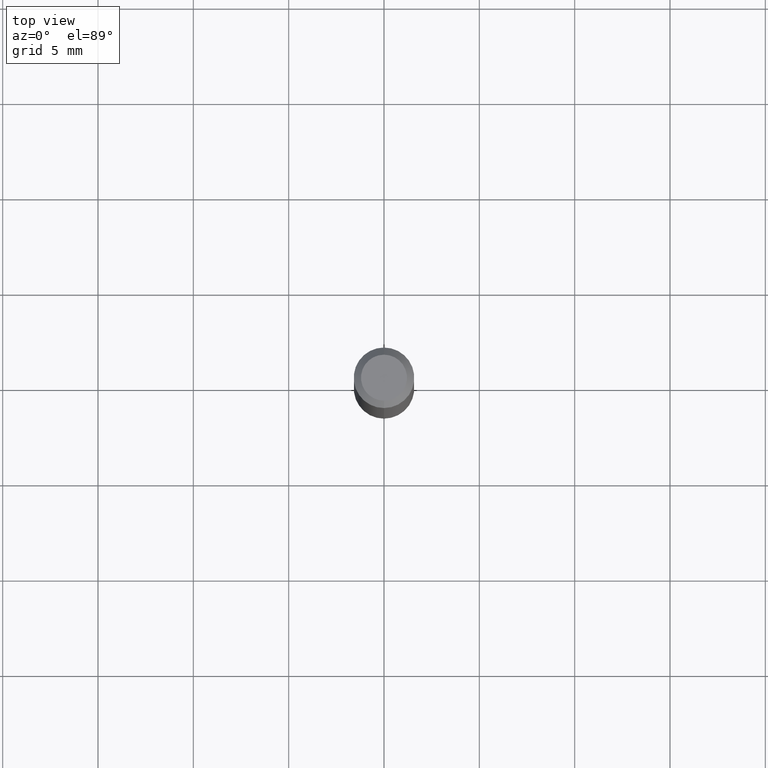
[diagram: clean part render]
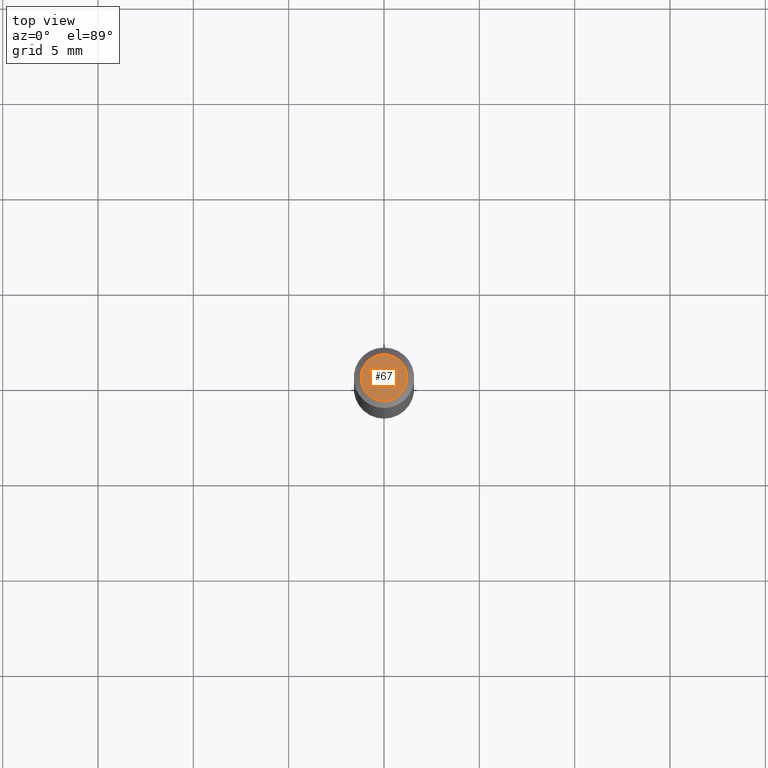
[diagram: same view with one face highlighted and labeled with its STEP entity id]
A machine part, top view. The second image highlights one B-rep face of the part: STEP entity #67.
In plain terms, the highlighted planar face has unit normal (0, -0, -1).
Its self-contained STEP definition (entity closure, byte-faithful):
#7 = ORIENTED_EDGE ( 'NONE', *, *, #282, .T. ) ;
#20 = AXIS2_PLACEMENT_3D ( 'NONE', #263, #426, #501 ) ;
#32 = CARTESIAN_POINT ( 'NONE',  ( -5.856629225201852265E-45, 8.361628461660476636E-31, 2.394877894870875462E-16 ) ) ;
#40 = CARTESIAN_POINT ( 'NONE',  ( -5.856629225201852265E-45, 8.361628461660476636E-31, 2.394877894870875462E-16 ) ) ;
#64 = CARTESIAN_POINT ( 'NONE',  ( -3.773273898774340269E-16, -0.04749999999999999362, 4.053322998813375719E-16 ) ) ;
#67 = ADVANCED_FACE ( 'NONE', ( #459 ), #343, .F. ) ;
#79 = DIRECTION ( 'NONE',  ( -6.982962677686266711E-15, -1.000000000000000000, 3.491463376721053028E-15 ) ) ;
#83 = VERTEX_POINT ( 'NONE', #64 ) ;
#160 = DIRECTION ( 'NONE',  ( -2.445481349067954687E-29, 3.491463376721053422E-15, 1.000000000000000000 ) ) ;
#166 = EDGE_CURVE ( 'NONE', #83, #416, #450, .T. ) ;
#202 = EDGE_LOOP ( 'NONE', ( #7, #356 ) ) ;
#212 = CARTESIAN_POINT ( 'NONE',  ( 3.840629472727447874E-16, 0.04749999999999999362, 7.364327909283752044E-17 ) ) ;
#263 = CARTESIAN_POINT ( 'NONE',  ( 3.316907271900976096E-16, 0.04749999999999999362, -4.610061565070625880E-17 ) ) ;
#282 = EDGE_CURVE ( 'NONE', #416, #83, #307, .T. ) ;
#307 = CIRCLE ( 'NONE', #401, 0.04749999999999999362 ) ;
#319 = AXIS2_PLACEMENT_3D ( 'NONE', #40, #160, #431 ) ;
#343 = PLANE ( 'NONE',  #20 ) ;
#356 = ORIENTED_EDGE ( 'NONE', *, *, #166, .T. ) ;
#401 = AXIS2_PLACEMENT_3D ( 'NONE', #32, #435, #79 ) ;
#416 = VERTEX_POINT ( 'NONE', #212 ) ;
#426 = DIRECTION ( 'NONE',  ( 2.445481349067954126E-29, -3.491463376721053817E-15, -1.000000000000000000 ) ) ;
#431 = DIRECTION ( 'NONE',  ( -6.982962677686266711E-15, -1.000000000000000000, 3.491463376721053028E-15 ) ) ;
#435 = DIRECTION ( 'NONE',  ( -2.445481349067954687E-29, 3.491463376721053422E-15, 1.000000000000000000 ) ) ;
#450 = CIRCLE ( 'NONE', #319, 0.04749999999999999362 ) ;
#459 = FACE_OUTER_BOUND ( 'NONE', #202, .T. ) ;
#501 = DIRECTION ( 'NONE',  ( 6.982962677686265922E-15, 1.000000000000000000, -3.491463376721053817E-15 ) ) ;